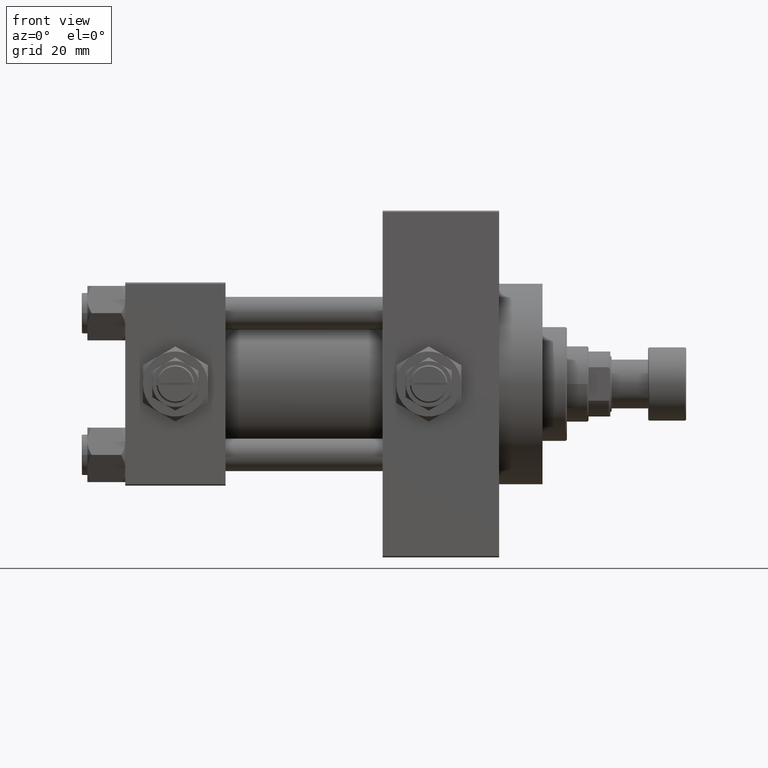
[diagram: clean part render]
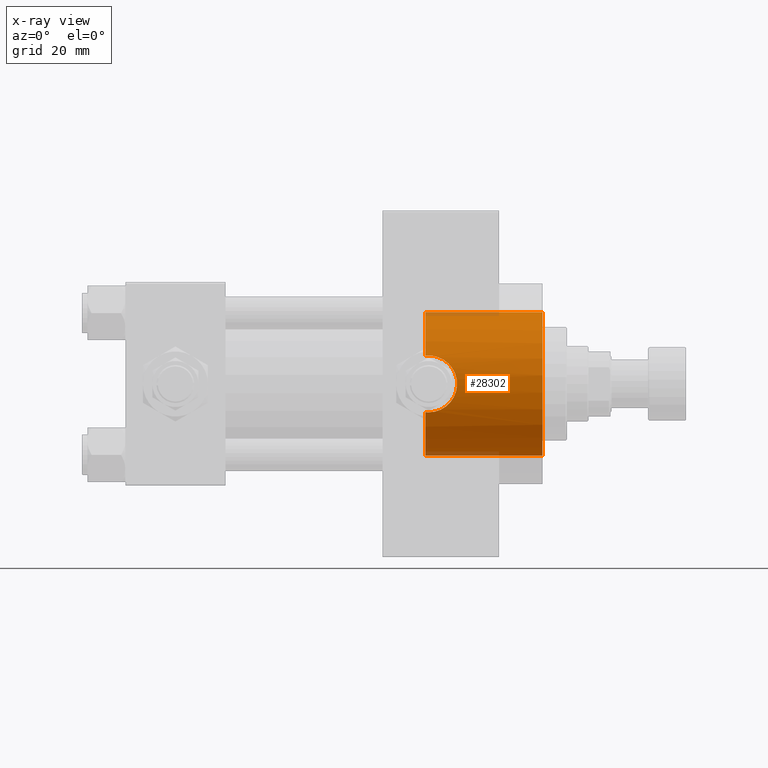
[diagram: x-ray — body ghosted, one internal face saturated and labeled with its STEP entity id]
A machine part, front view, then the same camera in x-ray: the body is ghosted and one INTERNAL B-rep face — a face not visible from any outside direction — is saturated and labeled: STEP entity #28302.
In plain terms, the highlighted cylindrical surface (partial cylindrical patch) has radius 26.5 mm, axis along (1, 0, 0).
Its self-contained STEP definition (entity closure, byte-faithful):
#65 = DIRECTION ( 'NONE',  ( 0.000000000000000000, 0.000000000000000000, -1.000000000000000000 ) ) ;
#215 = CARTESIAN_POINT ( 'NONE',  ( 119.8850942087585736, -25.58093385762820660, 6.936447548980011035 ) ) ;
#459 = CARTESIAN_POINT ( 'NONE',  ( 113.3839948142214524, -24.36973996242157625, 10.41091756284553504 ) ) ;
#716 = CARTESIAN_POINT ( 'NONE',  ( 112.0000000000000000, -24.33967132070604222, -10.47999999999999865 ) ) ;
#2226 = LINE ( 'NONE', #48263, #39198 ) ;
#2368 = DIRECTION ( 'NONE',  ( 1.000000000000000000, 0.000000000000000000, 0.000000000000000000 ) ) ;
#3503 = CARTESIAN_POINT ( 'NONE',  ( 122.4800680225664280, -26.50002690099941205, -0.3451042088078361547 ) ) ;
#3732 = CARTESIAN_POINT ( 'NONE',  ( 110.7400000000000375, 0.000000000000000000, -26.50000000000000355 ) ) ;
#3742 = CARTESIAN_POINT ( 'NONE',  ( 120.3132647636415271, -25.71940794313460898, -6.390292897823913520 ) ) ;
#3909 = EDGE_CURVE ( 'NONE', #33955, #29555, #5610, .T. ) ;
#3986 = CARTESIAN_POINT ( 'NONE',  ( 116.3489237122697091, -24.72318467201152714, -9.541179571695423078 ) ) ;
#4239 = CARTESIAN_POINT ( 'NONE',  ( 115.3904700717597649, -24.57248644795726022, 9.922439993611771314 ) ) ;
#4273 = CARTESIAN_POINT ( 'NONE',  ( 110.7400000000000375, 0.000000000000000000, 0.000000000000000000 ) ) ;
#4487 = CARTESIAN_POINT ( 'NONE',  ( 112.6982936874238703, -24.33967132070603867, 10.47999999999999865 ) ) ;
#5134 = B_SPLINE_CURVE_WITH_KNOTS ( 'NONE', 3,
 ( #5864, #44824, #36535, #6598 ),
 .UNSPECIFIED., .F., .F.,
 ( 4, 4 ),
 ( 0.03437190755806011910, 0.03561776921873218565 ),
 .UNSPECIFIED. ) ;
#5610 = B_SPLINE_CURVE_WITH_KNOTS ( 'NONE', 3,
 ( #716, #30638, #38942, #42220, #38694, #3986, #11519, #26865, #23599, #11758, #49529, #27103, #37277, #3742, #44829, #29466, #21932, #26623, #8258, #7756, #23096, #46247, #3503, #45755, #41043, #42467, #7518, #46005, #15798, #10354, #34414, #6604, #25697, #19323, #215, #30882, #18836, #15058, #8004, #19078, #46493, #23337, #4239, #19570, #34910, #459, #4487, #27356 ),
 .UNSPECIFIED., .F., .F.,
 ( 4, 2, 2, 2, 2, 2, 2, 2, 2, 2, 2, 2, 2, 2, 2, 2, 2, 2, 2, 2, 2, 2, 2, 4 ),
 ( 0.001255586767787659347, 0.003325356817179700875, 0.005395126866571742404, 0.006430011891267743869, 0.007464896915963744467, 0.009534666965355782092, 0.01056955199005181305, 0.01160443701474784574, 0.01367420706413988857, 0.01574397711353192966, 0.01677886213822795194, 0.01781374716292397076, 0.01988351721231601532, 0.02091840223701203413, 0.02195328726170805295, 0.02298817228640406482, 0.02402305731110008363, 0.02609282736049212126, 0.02712771238518812619, 0.02816259740988413460, 0.03023236745927610630, 0.03126725248397210777, 0.03230213750866811617, 0.03437190755806011910 ),
 .UNSPECIFIED. ) ;
#5702 = AXIS2_PLACEMENT_3D ( 'NONE', #34265, #33530, #65 ) ;
#5864 = CARTESIAN_POINT ( 'NONE',  ( 112.0000000000000000, -24.33967132070604222, 10.48000000000000220 ) ) ;
#6598 = CARTESIAN_POINT ( 'NONE',  ( 110.7400000000000375, -24.37226292324945476, 10.40398000767014786 ) ) ;
#6604 = CARTESIAN_POINT ( 'NONE',  ( 121.0679913760332198, -25.97354752128884314, 5.264851845784580320 ) ) ;
#6729 = B_SPLINE_CURVE_WITH_KNOTS ( 'NONE', 3,
 ( #10671, #49658, #45886, #42104 ),
 .UNSPECIFIED., .F., .F.,
 ( 4, 4 ),
 ( 0.000000000000000000, 0.001255586767787659347 ),
 .UNSPECIFIED. ) ;
#7062 = DIRECTION ( 'NONE',  ( 1.000000000000000000, 0.000000000000000000, 0.000000000000000000 ) ) ;
#7516 = CARTESIAN_POINT ( 'NONE',  ( 110.7400000000000375, -24.37226292324945831, -10.40398000767014430 ) ) ;
#7518 = CARTESIAN_POINT ( 'NONE',  ( 122.1219222710722505, -26.36027543327034905, 2.738055544399104146 ) ) ;
#7600 = ORIENTED_EDGE ( 'NONE', *, *, #49564, .T. ) ;
#7756 = CARTESIAN_POINT ( 'NONE',  ( 122.3421836049517140, -26.44572692659851754, -1.728475508984260278 ) ) ;
#8004 = CARTESIAN_POINT ( 'NONE',  ( 118.1110651716822275, -25.09360970262138224, 8.520611273842996880 ) ) ;
#8128 = CARTESIAN_POINT ( 'NONE',  ( 154.0000000000000284, 0.000000000000000000, -26.50000000000000355 ) ) ;
#8258 = CARTESIAN_POINT ( 'NONE',  ( 122.1391112229688076, -26.36675217432884466, -2.738755341944245192 ) ) ;
#8935 = VERTEX_POINT ( 'NONE', #44019 ) ;
#9762 = DIRECTION ( 'NONE',  ( 1.000000000000000000, -0.000000000000000000, -0.000000000000000000 ) ) ;
#9875 = DIRECTION ( 'NONE',  ( 0.000000000000000000, 0.000000000000000000, -1.000000000000000000 ) ) ;
#10108 = FACE_OUTER_BOUND ( 'NONE', #14031, .T. ) ;
#10354 = CARTESIAN_POINT ( 'NONE',  ( 121.5385175848662982, -26.14168889184968947, 4.354785931857526826 ) ) ;
#10634 = CARTESIAN_POINT ( 'NONE',  ( 110.7400000000000375, 0.000000000000000000, 0.000000000000000000 ) ) ;
#10671 = CARTESIAN_POINT ( 'NONE',  ( 110.7400000000000375, -24.37226292324945831, -10.40398000767014430 ) ) ;
#11241 = ORIENTED_EDGE ( 'NONE', *, *, #15516, .T. ) ;
#11519 = CARTESIAN_POINT ( 'NONE',  ( 116.6580558779861150, -24.77960996754317335, -9.394203453174529983 ) ) ;
#11552 = DIRECTION ( 'NONE',  ( 0.000000000000000000, 0.000000000000000000, -1.000000000000000000 ) ) ;
#11758 = CARTESIAN_POINT ( 'NONE',  ( 118.4049404352972061, -25.16229795609818964, -8.322848467437539810 ) ) ;
#13646 = DIRECTION ( 'NONE',  ( 1.000000000000000000, -0.000000000000000000, -0.000000000000000000 ) ) ;
#14031 = EDGE_LOOP ( 'NONE', ( #37663, #15160, #7600, #42256, #25006, #11241, #27702, #16563 ) ) ;
#15029 = VERTEX_POINT ( 'NONE', #7516 ) ;
#15058 = CARTESIAN_POINT ( 'NONE',  ( 118.3864792908362773, -25.16230905708522414, 8.316254619809553716 ) ) ;
#15085 = VECTOR ( 'NONE', #35719, 1000.000000000000000 ) ;
#15160 = ORIENTED_EDGE ( 'NONE', *, *, #26669, .T. ) ;
#15516 = EDGE_CURVE ( 'NONE', #15029, #33955, #6729, .T. ) ;
#15798 = CARTESIAN_POINT ( 'NONE',  ( 121.8022638174866046, -26.23907308479208922, 3.723318718764354163 ) ) ;
#16563 = ORIENTED_EDGE ( 'NONE', *, *, #39202, .T. ) ;
#18836 = CARTESIAN_POINT ( 'NONE',  ( 118.9147507852791676, -25.30155050139244111, 7.882476147205595751 ) ) ;
#19078 = CARTESIAN_POINT ( 'NONE',  ( 117.2636119660474066, -24.89625137302610369, 9.087734872939172703 ) ) ;
#19323 = CARTESIAN_POINT ( 'NONE',  ( 120.3165002292777785, -25.71874665637611201, 6.413821170274212946 ) ) ;
#19570 = CARTESIAN_POINT ( 'NONE',  ( 114.7286532048194516, -24.48994387988090082, 10.12445329003761252 ) ) ;
#19626 = CARTESIAN_POINT ( 'NONE',  ( 110.7400000000000375, 3.245314017740486554E-15, 26.50000000000000355 ) ) ;
#20593 = AXIS2_PLACEMENT_3D ( 'NONE', #10634, #2368, #40831 ) ;
#21932 = CARTESIAN_POINT ( 'NONE',  ( 121.4057128516256370, -26.09263577897064224, -4.673612418766447618 ) ) ;
#22199 = VERTEX_POINT ( 'NONE', #8128 ) ;
#23096 = CARTESIAN_POINT ( 'NONE',  ( 122.3935590552673744, -26.46591511510092687, -1.387412420731371165 ) ) ;
#23230 = EDGE_CURVE ( 'NONE', #46694, #34619, #39989, .T. ) ;
#23337 = CARTESIAN_POINT ( 'NONE',  ( 115.7173844672076370, -24.61993612039164248, 9.804529592362731805 ) ) ;
#23599 = CARTESIAN_POINT ( 'NONE',  ( 117.5577538920436780, -24.96463143003449403, -8.891425016462852327 ) ) ;
#24740 = CARTESIAN_POINT ( 'NONE',  ( 110.7400000000000375, -24.37226292324945476, 10.40398000767014786 ) ) ;
#25006 = ORIENTED_EDGE ( 'NONE', *, *, #35979, .F. ) ;
#25697 = CARTESIAN_POINT ( 'NONE',  ( 120.8904987776702171, -25.91192981801191664, 5.559420023815757617 ) ) ;
#26205 = CARTESIAN_POINT ( 'NONE',  ( 112.0000000000000000, -24.33967132070604222, -10.47999999999999865 ) ) ;
#26623 = CARTESIAN_POINT ( 'NONE',  ( 121.9389570606566053, -26.28956209411557765, -3.395175965175880606 ) ) ;
#26669 = EDGE_CURVE ( 'NONE', #46694, #8935, #48292, .T. ) ;
#26865 = CARTESIAN_POINT ( 'NONE',  ( 117.2635990777562256, -24.90054338428140568, -9.068796382691635571 ) ) ;
#27103 = CARTESIAN_POINT ( 'NONE',  ( 119.6501220615578234, -25.51256335955728716, -7.170912732211446539 ) ) ;
#27356 = CARTESIAN_POINT ( 'NONE',  ( 112.0000000000000000, -24.33967132070604222, 10.48000000000000220 ) ) ;
#27702 = ORIENTED_EDGE ( 'NONE', *, *, #3909, .T. ) ;
#28302 = ADVANCED_FACE ( 'NONE', ( #10108 ), #41045, .F. ) ;
#28955 = CIRCLE ( 'NONE', #5702, 26.50000000000000355 ) ;
#29148 = CARTESIAN_POINT ( 'NONE',  ( 110.7400000000000375, 3.245314017740486554E-15, 26.50000000000000355 ) ) ;
#29466 = CARTESIAN_POINT ( 'NONE',  ( 121.0816778311290136, -25.97633853132261450, -5.273786452924785983 ) ) ;
#29555 = VERTEX_POINT ( 'NONE', #37121 ) ;
#29588 = AXIS2_PLACEMENT_3D ( 'NONE', #40800, #13646, #9875 ) ;
#30544 = AXIS2_PLACEMENT_3D ( 'NONE', #4273, #7062, #11552 ) ;
#30638 = CARTESIAN_POINT ( 'NONE',  ( 112.6904960883777846, -24.33967132070604222, -10.48000000000000043 ) ) ;
#30882 = CARTESIAN_POINT ( 'NONE',  ( 119.1663633815065140, -25.37171319999174912, 7.654298772871992895 ) ) ;
#33530 = DIRECTION ( 'NONE',  ( 1.000000000000000000, 0.000000000000000000, 0.000000000000000000 ) ) ;
#33955 = VERTEX_POINT ( 'NONE', #26205 ) ;
#34265 = CARTESIAN_POINT ( 'NONE',  ( 154.0000000000000284, 0.000000000000000000, 0.000000000000000000 ) ) ;
#34414 = CARTESIAN_POINT ( 'NONE',  ( 121.3916535229813576, -26.08830885934473542, 4.663043711798784408 ) ) ;
#34619 = VERTEX_POINT ( 'NONE', #24740 ) ;
#34910 = CARTESIAN_POINT ( 'NONE',  ( 114.3947302122627718, -24.45488967133337965, 10.20851256290626985 ) ) ;
#35719 = DIRECTION ( 'NONE',  ( 1.000000000000000000, -0.000000000000000000, -0.000000000000000000 ) ) ;
#35979 = EDGE_CURVE ( 'NONE', #15029, #38612, #43543, .T. ) ;
#36535 = CARTESIAN_POINT ( 'NONE',  ( 111.1580741051582635, -24.35064928096444348, 10.45461191700782422 ) ) ;
#37121 = CARTESIAN_POINT ( 'NONE',  ( 112.0000000000000000, -24.33967132070604222, 10.48000000000000220 ) ) ;
#37277 = CARTESIAN_POINT ( 'NONE',  ( 119.8811664359166400, -25.58300917221409421, -6.916171625962136638 ) ) ;
#37663 = ORIENTED_EDGE ( 'NONE', *, *, #23230, .F. ) ;
#38612 = VERTEX_POINT ( 'NONE', #3732 ) ;
#38694 = CARTESIAN_POINT ( 'NONE',  ( 115.4024368383431352, -24.56844862672225815, -9.935854460437969493 ) ) ;
#38942 = CARTESIAN_POINT ( 'NONE',  ( 113.3786097457406044, -24.36915941385104745, -10.41231194222669387 ) ) ;
#39198 = VECTOR ( 'NONE', #9762, 1000.000000000000000 ) ;
#39202 = EDGE_CURVE ( 'NONE', #29555, #34619, #5134, .T. ) ;
#39989 = CIRCLE ( 'NONE', #20593, 26.50000000000000355 ) ;
#40800 = CARTESIAN_POINT ( 'NONE',  ( 110.7400000000000375, 0.000000000000000000, 0.000000000000000000 ) ) ;
#40831 = DIRECTION ( 'NONE',  ( 0.000000000000000000, 0.000000000000000000, -1.000000000000000000 ) ) ;
#41043 = CARTESIAN_POINT ( 'NONE',  ( 122.4114040688938587, -26.47265107862981992, 1.382412405478188999 ) ) ;
#41045 = CYLINDRICAL_SURFACE ( 'NONE', #29588, 26.50000000000000355 ) ;
#42104 = CARTESIAN_POINT ( 'NONE',  ( 112.0000000000000000, -24.33967132070604222, -10.47999999999999865 ) ) ;
#42220 = CARTESIAN_POINT ( 'NONE',  ( 114.7461877943153752, -24.48462605612510856, -10.13781324604279099 ) ) ;
#42256 = ORIENTED_EDGE ( 'NONE', *, *, #42831, .F. ) ;
#42467 = CARTESIAN_POINT ( 'NONE',  ( 122.2075249541714896, -26.39335609204158573, 2.399236127628239235 ) ) ;
#42831 = EDGE_CURVE ( 'NONE', #38612, #22199, #2226, .T. ) ;
#43543 = CIRCLE ( 'NONE', #30544, 26.50000000000000355 ) ;
#44019 = CARTESIAN_POINT ( 'NONE',  ( 154.0000000000000284, 3.245314017740486554E-15, 26.50000000000000355 ) ) ;
#44824 = CARTESIAN_POINT ( 'NONE',  ( 111.5796744023297293, -24.33967132070604222, 10.48000000000000220 ) ) ;
#44829 = CARTESIAN_POINT ( 'NONE',  ( 120.5155153844950462, -25.78569419426082021, -6.118106053452859960 ) ) ;
#45755 = CARTESIAN_POINT ( 'NONE',  ( 122.4798633477534509, -26.49994595790488106, 0.6963870350870486892 ) ) ;
#45886 = CARTESIAN_POINT ( 'NONE',  ( 111.5811236364006049, -24.33967132070604222, -10.47999999999999865 ) ) ;
#46005 = CARTESIAN_POINT ( 'NONE',  ( 121.9191483855533704, -26.28308039691835418, 3.400110870430098853 ) ) ;
#46247 = CARTESIAN_POINT ( 'NONE',  ( 122.4626037639855838, -26.49310609510639836, -0.6963515910539334053 ) ) ;
#46493 = CARTESIAN_POINT ( 'NONE',  ( 116.6659000583122605, -24.77500862834706652, 9.408993987884901600 ) ) ;
#46694 = VERTEX_POINT ( 'NONE', #19626 ) ;
#48263 = CARTESIAN_POINT ( 'NONE',  ( 110.7400000000000375, 0.000000000000000000, -26.50000000000000355 ) ) ;
#48292 = LINE ( 'NONE', #29148, #15085 ) ;
#49529 = CARTESIAN_POINT ( 'NONE',  ( 118.9276451403627135, -25.30216499957183984, -7.893159106980520257 ) ) ;
#49564 = EDGE_CURVE ( 'NONE', #8935, #22199, #28955, .T. ) ;
#49658 = CARTESIAN_POINT ( 'NONE',  ( 111.1611364518797984, -24.35049096341792918, -10.45498279016081611 ) ) ;